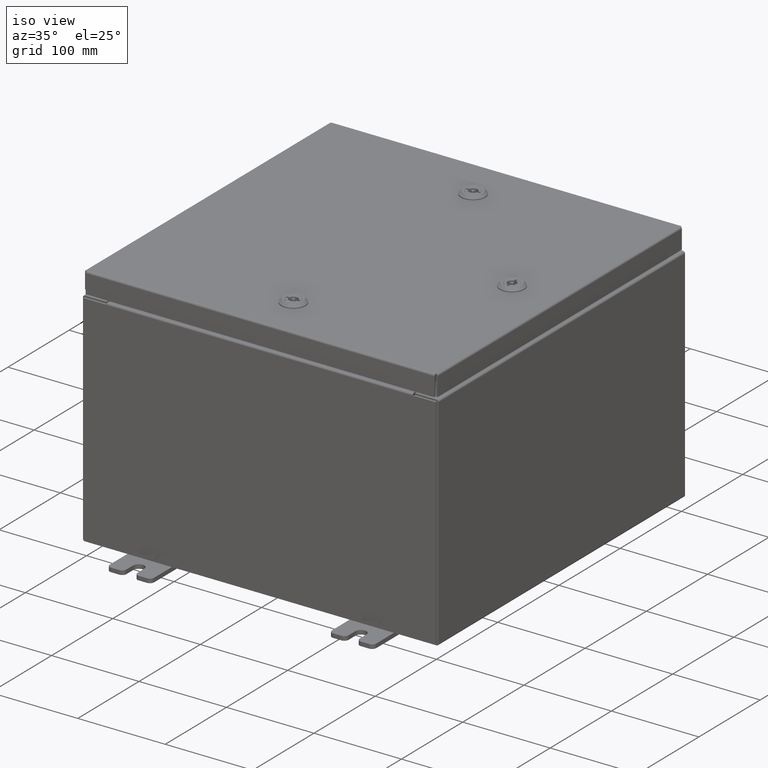
[diagram: clean part render]
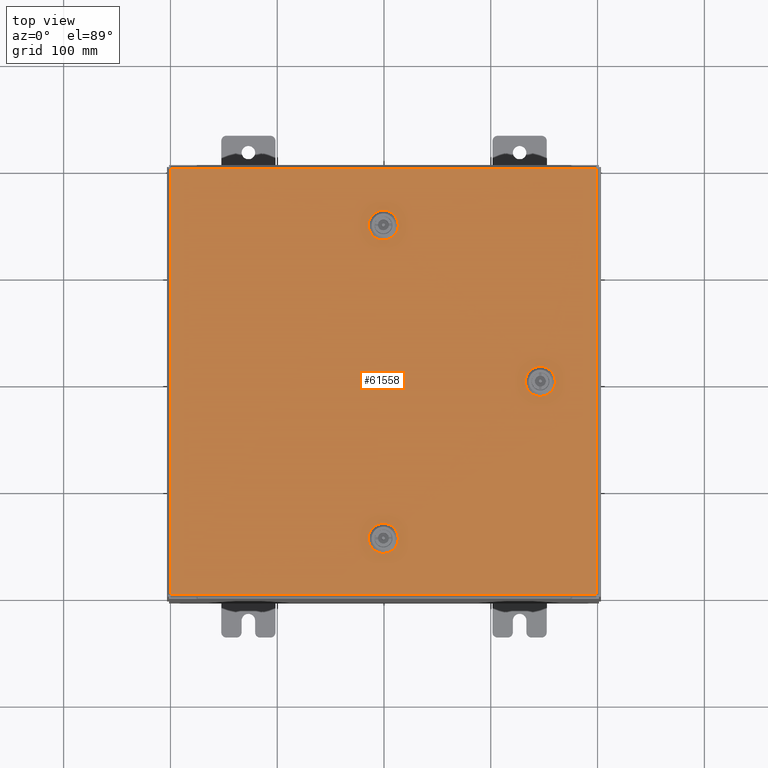
[diagram: tour spotlight — one face highlighted and labeled with its STEP entity id]
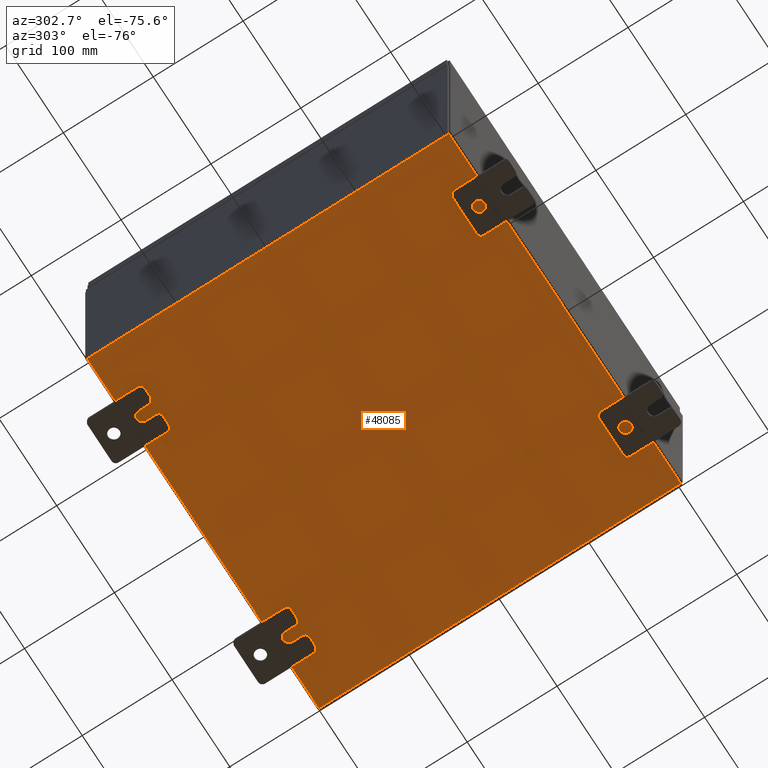
[diagram: tour spotlight — one face highlighted and labeled with its STEP entity id]
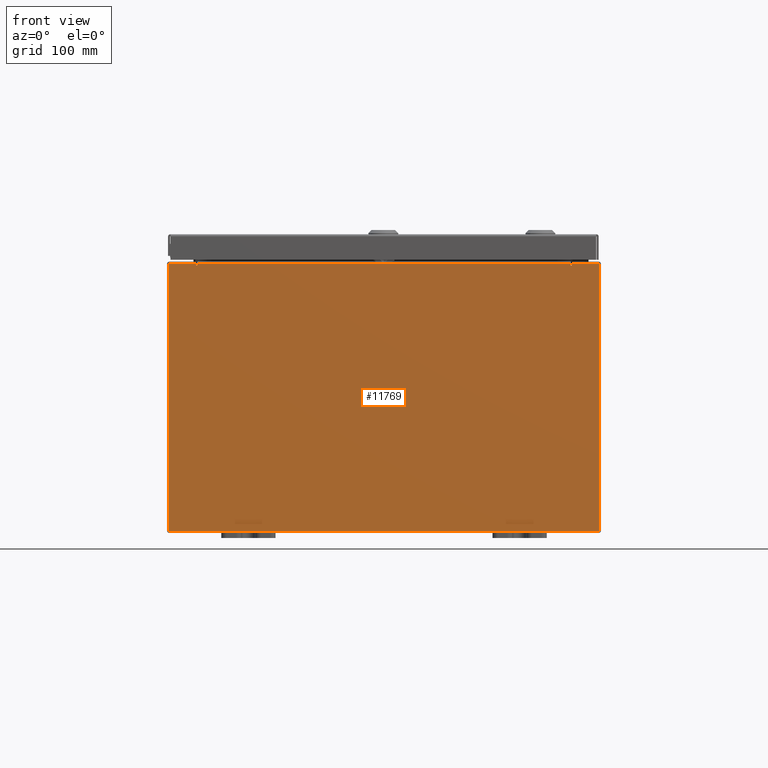
[diagram: tour spotlight — one face highlighted and labeled with its STEP entity id]
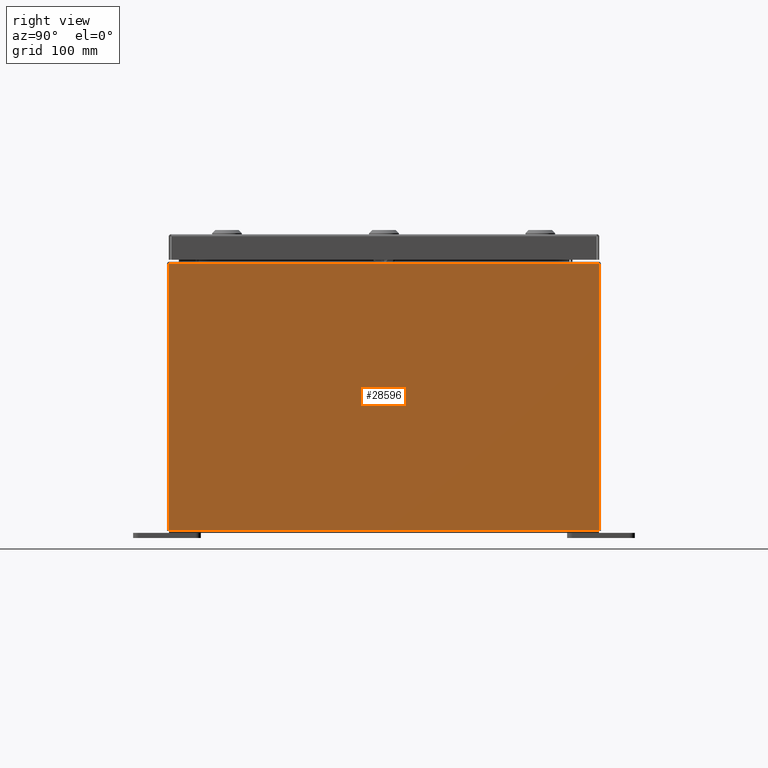
[diagram: tour spotlight — one face highlighted and labeled with its STEP entity id]
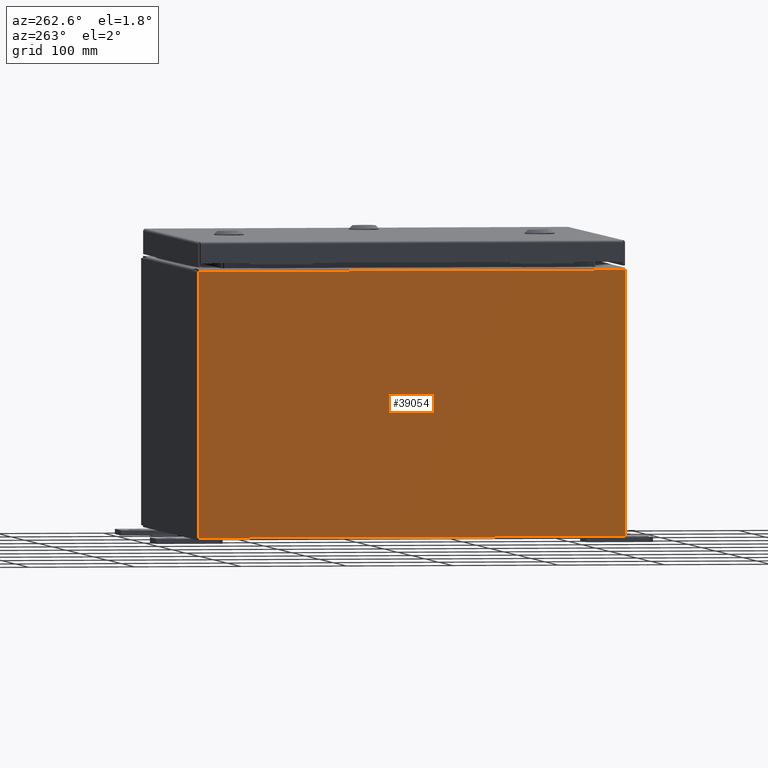
[diagram: tour spotlight — one face highlighted and labeled with its STEP entity id]
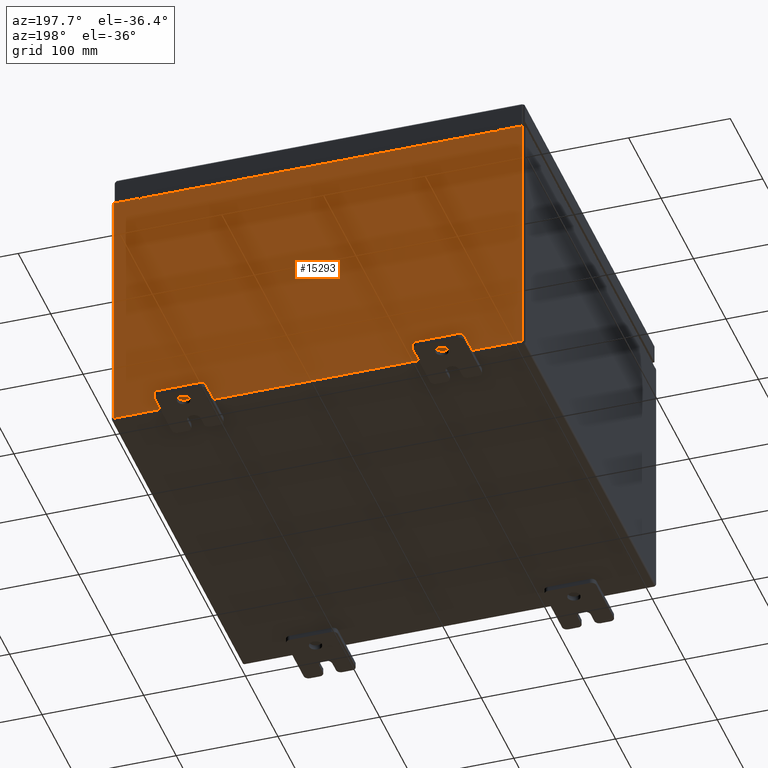
[diagram: tour spotlight — one face highlighted and labeled with its STEP entity id]
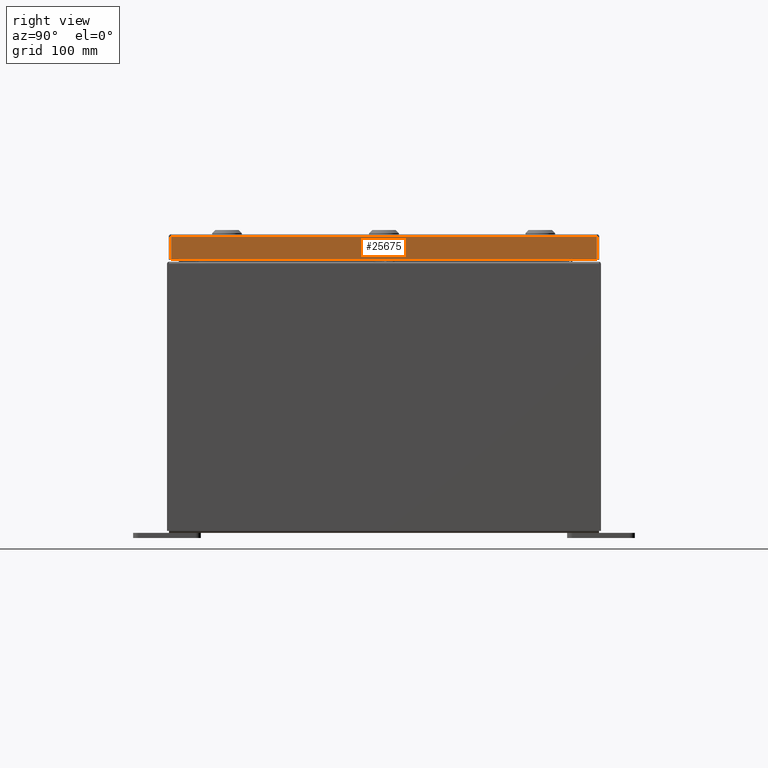
[diagram: tour spotlight — one face highlighted and labeled with its STEP entity id]
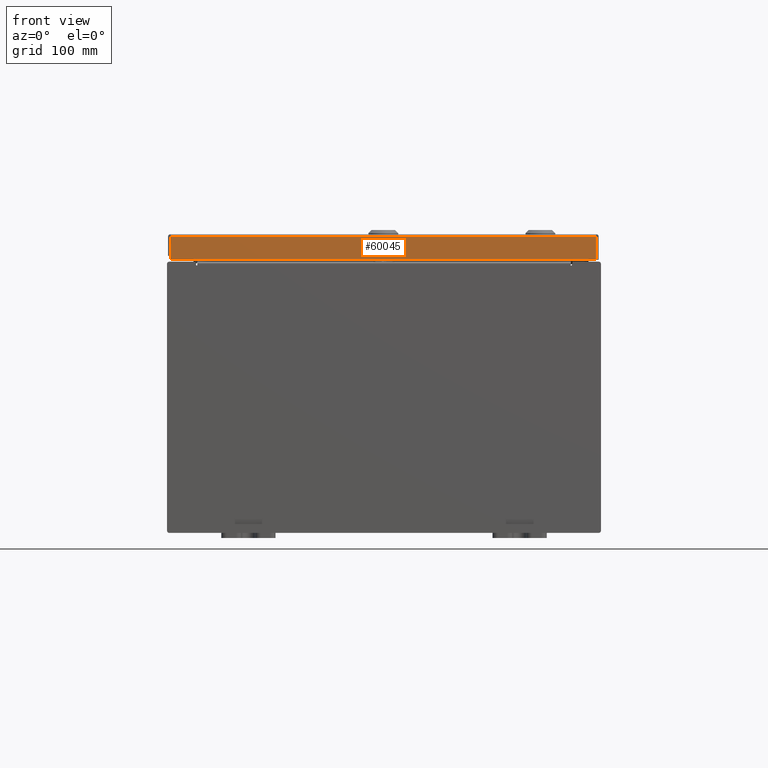
[diagram: tour spotlight — one face highlighted and labeled with its STEP entity id]
A machine part: a face-by-face anatomy tour. The part has 2966 B-rep faces; the first image is the clean iso view, then the 8 largest visible faces are spotlighted one at a time (largest first), each with its STEP entity span.

Face 1 — top view, entity #61558. In plain terms, the highlighted planar face has unit normal (0, 0, -1).
Definition (entity closure, byte-faithful):
#1628 = VECTOR ( 'NONE', #18817, 39.37007874015748100 ) ;
#2269 = ORIENTED_EDGE ( 'NONE', *, *, #38586, .T. ) ;
#2333 = DIRECTION ( 'NONE',  ( 1.000000000000000000, 0.0000000000000000000, 0.0000000000000000000 ) ) ;
#2975 = DIRECTION ( 'NONE',  ( 0.0000000000000000000, 1.000000000000000000, 6.982962677686269100E-015 ) ) ;
#3232 = CARTESIAN_POINT ( 'NONE',  ( 0.1994523752679067700, -6.182799999999984300, -5.238409111919896100E-014 ) ) ;
#4063 = CARTESIAN_POINT ( 'NONE',  ( -7.849800000000000100, 7.849800000000000100, -2.048885995248197400E-016 ) ) ;
#4675 = FACE_BOUND ( 'NONE', #20193, .T. ) ;
#4688 = AXIS2_PLACEMENT_3D ( 'NONE', #60210, #31303, #2333 ) ;
#5046 = VECTOR ( 'NONE', #30084, 39.37007874015748100 ) ;
#5088 = CARTESIAN_POINT ( 'NONE',  ( 0.1994523752678995500, 5.392799999999995800, 0.0000000000000000000 ) ) ;
#5229 = CARTESIAN_POINT ( 'NONE',  ( 5.787800000000007800, 1.529834876451990400E-014, 0.0000000000000000000 ) ) ;
#5230 = DIRECTION ( 'NONE',  ( -0.0000000000000000000, -6.982962677686266700E-015, 1.000000000000000000 ) ) ;
#5826 = AXIS2_PLACEMENT_3D ( 'NONE', #5229, #38974, #10082 ) ;
#5954 = EDGE_CURVE ( 'NONE', #57878, #8775, #12998, .T. ) ;
#6171 = ORIENTED_EDGE ( 'NONE', *, *, #48715, .F. ) ;
#6586 = CARTESIAN_POINT ( 'NONE',  ( 5.787800000000007800, 1.529834876451990400E-014, 0.0000000000000000000 ) ) ;
#6611 = ORIENTED_EDGE ( 'NONE', *, *, #12276, .F. ) ;
#7115 = CARTESIAN_POINT ( 'NONE',  ( 1.529834876451987200E-014, -5.787799999999992700, -4.962582086151294400E-014 ) ) ;
#7306 = LINE ( 'NONE', #20766, #44291 ) ;
#7378 = CARTESIAN_POINT ( 'NONE',  ( 0.4425000000000126100, -5.787799999999992700, -4.962582086151294400E-014 ) ) ;
#7491 = VERTEX_POINT ( 'NONE', #5088 ) ;
#7649 = DIRECTION ( 'NONE',  ( 0.0000000000000000000, 0.0000000000000000000, 1.000000000000000000 ) ) ;
#7707 = VECTOR ( 'NONE', #35070, 39.37007874015748100 ) ;
#8286 = EDGE_CURVE ( 'NONE', #13248, #14443, #32506, .T. ) ;
#8775 = VERTEX_POINT ( 'NONE', #45717 ) ;
#9689 = EDGE_LOOP ( 'NONE', ( #44489, #6171, #31150, #50867, #27893 ) ) ;
#10082 = DIRECTION ( 'NONE',  ( 1.000000000000000000, 0.0000000000000000000, 0.0000000000000000000 ) ) ;
#10155 = CIRCLE ( 'NONE', #39723, 0.4424999999999979500 ) ;
#10565 = VECTOR ( 'NONE', #16201, 39.37007874015748100 ) ;
#10745 = CARTESIAN_POINT ( 'NONE',  ( 5.392800000000015400, 0.1994523752679053800, 0.0000000000000000000 ) ) ;
#11423 = DIRECTION ( 'NONE',  ( 1.000000000000000000, 0.0000000000000000000, 0.0000000000000000000 ) ) ;
#11678 = EDGE_CURVE ( 'NONE', #7491, #13680, #58728, .T. ) ;
#11967 = DIRECTION ( 'NONE',  ( 0.0000000000000000000, 1.000000000000000000, 6.982962677686252500E-015 ) ) ;
#12276 = EDGE_CURVE ( 'NONE', #41647, #7491, #43552, .T. ) ;
#12998 = LINE ( 'NONE', #47601, #1628 ) ;
#13248 = VERTEX_POINT ( 'NONE', #7378 ) ;
#13680 = VERTEX_POINT ( 'NONE', #43745 ) ;
#14443 = VERTEX_POINT ( 'NONE', #46958 ) ;
#14525 = VECTOR ( 'NONE', #60883, 39.37007874015748100 ) ;
#15203 = AXIS2_PLACEMENT_3D ( 'NONE', #36545, #7649, #41386 ) ;
#15505 = VECTOR ( 'NONE', #29927, 39.37007874015748100 ) ;
#16201 = DIRECTION ( 'NONE',  ( -1.000000000000000000, -0.0000000000000000000, -0.0000000000000000000 ) ) ;
#17466 = DIRECTION ( 'NONE',  ( 0.0000000000000000000, 0.0000000000000000000, -1.000000000000000000 ) ) ;
#17490 = EDGE_CURVE ( 'NONE', #36808, #26967, #22110, .T. ) ;
#17580 = FACE_BOUND ( 'NONE', #29877, .T. ) ;
#17605 = AXIS2_PLACEMENT_3D ( 'NONE', #60825, #31925, #2975 ) ;
#18817 = DIRECTION ( 'NONE',  ( -1.000000000000000000, 1.369674334534795400E-014, 0.0000000000000000000 ) ) ;
#20193 = EDGE_LOOP ( 'NONE', ( #45810, #58551, #49686, #47862 ) ) ;
#20311 = EDGE_CURVE ( 'NONE', #44672, #28057, #23438, .T. ) ;
#20548 = CARTESIAN_POINT ( 'NONE',  ( 0.1994523752679068500, 6.182799999999984300, 0.0000000000000000000 ) ) ;
#20678 = CARTESIAN_POINT ( 'NONE',  ( 7.849800000000000100, 7.849800000000000100, -2.219626494852214000E-016 ) ) ;
#20680 = CARTESIAN_POINT ( 'NONE',  ( -0.1994523752678689600, 5.392799999999994900, 0.0000000000000000000 ) ) ;
#20766 = CARTESIAN_POINT ( 'NONE',  ( 7.849800000000000100, -7.849800000000000100, -2.219626494852214000E-016 ) ) ;
#22110 = LINE ( 'NONE', #49386, #7707 ) ;
#23297 = ORIENTED_EDGE ( 'NONE', *, *, #25800, .T. ) ;
#23438 = LINE ( 'NONE', #35362, #10565 ) ;
#23875 = EDGE_CURVE ( 'NONE', #14443, #28324, #31600, .T. ) ;
#24201 = DIRECTION ( 'NONE',  ( 0.0000000000000000000, 0.0000000000000000000, 1.000000000000000000 ) ) ;
#25096 = CARTESIAN_POINT ( 'NONE',  ( -7.849800000000000100, -7.849800000000000100, -2.219626494852214000E-016 ) ) ;
#25245 = CARTESIAN_POINT ( 'NONE',  ( 0.1994523752678995500, 5.392799999999995800, 0.0000000000000000000 ) ) ;
#25800 = EDGE_CURVE ( 'NONE', #49701, #44672, #7306, .T. ) ;
#26625 = CARTESIAN_POINT ( 'NONE',  ( -7.849800000000000100, -7.849800000000000100, -2.219626494852214000E-016 ) ) ;
#26942 = CARTESIAN_POINT ( 'NONE',  ( 0.0000000000000000000, 0.0000000000000000000, 0.0000000000000000000 ) ) ;
#26967 = VERTEX_POINT ( 'NONE', #47202 ) ;
#27371 = LINE ( 'NONE', #3232, #14525 ) ;
#27893 = ORIENTED_EDGE ( 'NONE', *, *, #44519, .F. ) ;
#28050 = CARTESIAN_POINT ( 'NONE',  ( 0.1994523752679070700, -6.182799999999984300, -5.238409111919896100E-014 ) ) ;
#28057 = VERTEX_POINT ( 'NONE', #58533 ) ;
#28110 = CARTESIAN_POINT ( 'NONE',  ( 5.392800000000015400, 0.1994523752679058200, 0.0000000000000000000 ) ) ;
#28150 = ORIENTED_EDGE ( 'NONE', *, *, #47436, .F. ) ;
#28324 = VERTEX_POINT ( 'NONE', #50462 ) ;
#28349 = CIRCLE ( 'NONE', #33458, 0.4424999999999983400 ) ;
#28680 = ORIENTED_EDGE ( 'NONE', *, *, #5954, .F. ) ;
#28745 = CARTESIAN_POINT ( 'NONE',  ( 0.1994523752678995500, -5.392799999999995800, -4.686755060382689600E-014 ) ) ;
#28906 = VERTEX_POINT ( 'NONE', #26625 ) ;
#29147 = CARTESIAN_POINT ( 'NONE',  ( 7.849800000000000100, -7.849800000000000100, -2.219626494852214000E-016 ) ) ;
#29877 = EDGE_LOOP ( 'NONE', ( #6611, #59779, #28680, #28150, #59407 ) ) ;
#29927 = DIRECTION ( 'NONE',  ( 1.000000000000000000, -0.0000000000000000000, -0.0000000000000000000 ) ) ;
#29969 = DIRECTION ( 'NONE',  ( -1.095739467627836100E-014, -1.000000000000000000, 0.0000000000000000000 ) ) ;
#30084 = DIRECTION ( 'NONE',  ( 1.000000000000000000, 2.739348669069617500E-015, -0.0000000000000000000 ) ) ;
#30099 = DIRECTION ( 'NONE',  ( 0.0000000000000000000, 1.000000000000000000, 0.0000000000000000000 ) ) ;
#31150 = ORIENTED_EDGE ( 'NONE', *, *, #23875, .F. ) ;
#31303 = DIRECTION ( 'NONE',  ( 0.0000000000000000000, 0.0000000000000000000, 1.000000000000000000 ) ) ;
#31358 = LINE ( 'NONE', #25096, #15505 ) ;
#31600 = LINE ( 'NONE', #28745, #57235 ) ;
#31773 = EDGE_CURVE ( 'NONE', #49623, #40280, #61168, .T. ) ;
#31925 = DIRECTION ( 'NONE',  ( -0.0000000000000000000, -6.982962677686266700E-015, 1.000000000000000000 ) ) ;
#32506 = CIRCLE ( 'NONE', #46568, 0.4424999999999972800 ) ;
#33008 = CARTESIAN_POINT ( 'NONE',  ( 5.392800000000011800, -0.1994523752678671000, 0.0000000000000000000 ) ) ;
#33458 = AXIS2_PLACEMENT_3D ( 'NONE', #7115, #40841, #11967 ) ;
#34143 = CARTESIAN_POINT ( 'NONE',  ( 1.529834876451987200E-014, -5.787799999999992700, -4.962582086151294400E-014 ) ) ;
#34283 = ORIENTED_EDGE ( 'NONE', *, *, #20311, .T. ) ;
#34635 = CIRCLE ( 'NONE', #17605, 0.4424999999999972800 ) ;
#34971 = DIRECTION ( 'NONE',  ( 0.0000000000000000000, 1.000000000000000000, 6.982962677686269100E-015 ) ) ;
#35070 = DIRECTION ( 'NONE',  ( -8.218046007208852600E-015, 1.000000000000000000, -0.0000000000000000000 ) ) ;
#35362 = CARTESIAN_POINT ( 'NONE',  ( 7.849800000000000100, 7.849800000000000100, -2.219626494852214000E-016 ) ) ;
#35689 = CIRCLE ( 'NONE', #36227, 0.4424999999999983400 ) ;
#36227 = AXIS2_PLACEMENT_3D ( 'NONE', #6586, #40305, #11423 ) ;
#36545 = CARTESIAN_POINT ( 'NONE',  ( 1.529834876451987200E-014, 5.787799999999992700, 0.0000000000000000000 ) ) ;
#36612 = PLANE ( 'NONE',  #46741 ) ;
#36808 = VERTEX_POINT ( 'NONE', #58462 ) ;
#37838 = DIRECTION ( 'NONE',  ( 0.0000000000000000000, -1.000000000000000000, 0.0000000000000000000 ) ) ;
#38586 = EDGE_CURVE ( 'NONE', #28906, #49701, #31358, .T. ) ;
#38968 = CIRCLE ( 'NONE', #4688, 0.4424999999999973400 ) ;
#38974 = DIRECTION ( 'NONE',  ( 0.0000000000000000000, 0.0000000000000000000, 1.000000000000000000 ) ) ;
#39723 = AXIS2_PLACEMENT_3D ( 'NONE', #53032, #24201, #57904 ) ;
#40280 = VERTEX_POINT ( 'NONE', #33008 ) ;
#40305 = DIRECTION ( 'NONE',  ( 0.0000000000000000000, 0.0000000000000000000, 1.000000000000000000 ) ) ;
#40841 = DIRECTION ( 'NONE',  ( -0.0000000000000000000, -6.982962677686266700E-015, 1.000000000000000000 ) ) ;
#41386 = DIRECTION ( 'NONE',  ( 1.000000000000000000, 0.0000000000000000000, 0.0000000000000000000 ) ) ;
#41647 = VERTEX_POINT ( 'NONE', #20680 ) ;
#41665 = FACE_OUTER_BOUND ( 'NONE', #48975, .T. ) ;
#42643 = EDGE_CURVE ( 'NONE', #8775, #41647, #10155, .T. ) ;
#43552 = LINE ( 'NONE', #25245, #5046 ) ;
#43698 = ORIENTED_EDGE ( 'NONE', *, *, #50953, .T. ) ;
#43745 = CARTESIAN_POINT ( 'NONE',  ( 0.4425000000000126100, 5.787799999999992700, 0.0000000000000000000 ) ) ;
#43863 = VERTEX_POINT ( 'NONE', #28050 ) ;
#44136 = EDGE_CURVE ( 'NONE', #26967, #49623, #56531, .T. ) ;
#44291 = VECTOR ( 'NONE', #30099, 39.37007874015748100 ) ;
#44489 = ORIENTED_EDGE ( 'NONE', *, *, #61602, .F. ) ;
#44519 = EDGE_CURVE ( 'NONE', #43863, #13248, #34635, .T. ) ;
#44672 = VERTEX_POINT ( 'NONE', #20678 ) ;
#45717 = CARTESIAN_POINT ( 'NONE',  ( -0.1994523752678657400, 6.182799999999989600, 0.0000000000000000000 ) ) ;
#45810 = ORIENTED_EDGE ( 'NONE', *, *, #17490, .F. ) ;
#46568 = AXIS2_PLACEMENT_3D ( 'NONE', #34143, #5230, #34971 ) ;
#46741 = AXIS2_PLACEMENT_3D ( 'NONE', #26942, #17466, #51155 ) ;
#46798 = VECTOR ( 'NONE', #29969, 39.37007874015748100 ) ;
#46958 = CARTESIAN_POINT ( 'NONE',  ( 0.1994523752678995500, -5.392799999999995800, -4.686755060382689600E-014 ) ) ;
#47202 = CARTESIAN_POINT ( 'NONE',  ( 6.182800000000003000, 0.1994523752679009100, 0.0000000000000000000 ) ) ;
#47436 = EDGE_CURVE ( 'NONE', #13680, #57878, #38968, .T. ) ;
#47601 = CARTESIAN_POINT ( 'NONE',  ( 0.1994523752679067700, 6.182799999999984300, 0.0000000000000000000 ) ) ;
#47862 = ORIENTED_EDGE ( 'NONE', *, *, #44136, .F. ) ;
#48715 = EDGE_CURVE ( 'NONE', #28324, #55845, #28349, .T. ) ;
#48975 = EDGE_LOOP ( 'NONE', ( #2269, #23297, #34283, #43698 ) ) ;
#49315 = VECTOR ( 'NONE', #37838, 39.37007874015748100 ) ;
#49386 = CARTESIAN_POINT ( 'NONE',  ( 6.182800000000003000, 0.1994523752679009100, 0.0000000000000000000 ) ) ;
#49623 = VERTEX_POINT ( 'NONE', #28110 ) ;
#49686 = ORIENTED_EDGE ( 'NONE', *, *, #31773, .F. ) ;
#49701 = VERTEX_POINT ( 'NONE', #29147 ) ;
#50462 = CARTESIAN_POINT ( 'NONE',  ( -0.1994523752678689600, -5.392799999999994900, -4.686755060382689000E-014 ) ) ;
#50830 = LINE ( 'NONE', #4063, #49315 ) ;
#50867 = ORIENTED_EDGE ( 'NONE', *, *, #8286, .F. ) ;
#50953 = EDGE_CURVE ( 'NONE', #28057, #28906, #50830, .T. ) ;
#51155 = DIRECTION ( 'NONE',  ( -1.000000000000000000, 0.0000000000000000000, -0.0000000000000000000 ) ) ;
#51593 = CARTESIAN_POINT ( 'NONE',  ( -0.1994523752678657400, -6.182799999999990500, 0.0000000000000000000 ) ) ;
#53032 = CARTESIAN_POINT ( 'NONE',  ( 1.529834876451987200E-014, 5.787799999999992700, 0.0000000000000000000 ) ) ;
#54508 = FACE_BOUND ( 'NONE', #9689, .T. ) ;
#55845 = VERTEX_POINT ( 'NONE', #51593 ) ;
#56531 = CIRCLE ( 'NONE', #5826, 0.4424999999999972800 ) ;
#57235 = VECTOR ( 'NONE', #62474, 39.37007874015748100 ) ;
#57878 = VERTEX_POINT ( 'NONE', #20548 ) ;
#57904 = DIRECTION ( 'NONE',  ( 1.000000000000000000, 0.0000000000000000000, 0.0000000000000000000 ) ) ;
#58462 = CARTESIAN_POINT ( 'NONE',  ( 6.182800000000007400, -0.1994523752678676000, 0.0000000000000000000 ) ) ;
#58533 = CARTESIAN_POINT ( 'NONE',  ( -7.849800000000000100, 7.849800000000000100, -2.048885995248197400E-016 ) ) ;
#58551 = ORIENTED_EDGE ( 'NONE', *, *, #60784, .F. ) ;
#58728 = CIRCLE ( 'NONE', #15203, 0.4424999999999973400 ) ;
#59407 = ORIENTED_EDGE ( 'NONE', *, *, #11678, .F. ) ;
#59779 = ORIENTED_EDGE ( 'NONE', *, *, #42643, .F. ) ;
#60210 = CARTESIAN_POINT ( 'NONE',  ( 1.529834876451987200E-014, 5.787799999999992700, 0.0000000000000000000 ) ) ;
#60784 = EDGE_CURVE ( 'NONE', #40280, #36808, #35689, .T. ) ;
#60825 = CARTESIAN_POINT ( 'NONE',  ( 1.529834876451987200E-014, -5.787799999999992700, -4.962582086151294400E-014 ) ) ;
#60883 = DIRECTION ( 'NONE',  ( 1.000000000000000000, 1.369674334534795400E-014, 9.732121487607481600E-029 ) ) ;
#61168 = LINE ( 'NONE', #10745, #46798 ) ;
#61558 = ADVANCED_FACE ( 'NONE', ( #4675, #54508, #17580, #41665 ), #36612, .F. ) ;
#61602 = EDGE_CURVE ( 'NONE', #55845, #43863, #27371, .T. ) ;
#62474 = DIRECTION ( 'NONE',  ( -1.000000000000000000, 2.739348669069617500E-015, 1.946424297521515400E-029 ) ) ;

Face 2 — auxiliary view, entity #48085. In plain terms, the highlighted planar face has unit normal (0, 0, -1).
Definition (entity closure, byte-faithful):
#230 = VERTEX_POINT ( 'NONE', #6481 ) ;
#310 = VERTEX_POINT ( 'NONE', #9939 ) ;
#583 = EDGE_LOOP ( 'NONE', ( #620, #53478, #60267, #39450 ) ) ;
#620 = ORIENTED_EDGE ( 'NONE', *, *, #56336, .F. ) ;
#2266 = DIRECTION ( 'NONE',  ( -1.000000000000000000, 0.0000000000000000000, -0.0000000000000000000 ) ) ;
#6481 = CARTESIAN_POINT ( 'NONE',  ( 7.912299999999998300, 7.925300000000000000, -0.07469999999999994700 ) ) ;
#8326 = VECTOR ( 'NONE', #11162, 39.37007874015748100 ) ;
#9258 = EDGE_CURVE ( 'NONE', #230, #47559, #19667, .T. ) ;
#9939 = CARTESIAN_POINT ( 'NONE',  ( -7.912300000000001000, 7.925299999999998200, -0.07470000000000000300 ) ) ;
#11162 = DIRECTION ( 'NONE',  ( -1.000000000000000000, -0.0000000000000000000, -0.0000000000000000000 ) ) ;
#11187 = VECTOR ( 'NONE', #59729, 39.37007874015748100 ) ;
#19387 = CARTESIAN_POINT ( 'NONE',  ( 7.912299999999998300, 7.925300000000000000, -0.07469999999999994700 ) ) ;
#19667 = LINE ( 'NONE', #19387, #56569 ) ;
#22383 = FACE_OUTER_BOUND ( 'NONE', #583, .T. ) ;
#23083 = CARTESIAN_POINT ( 'NONE',  ( 7.912299999999998300, -7.925300000000000900, -0.07470000000000000300 ) ) ;
#24139 = EDGE_CURVE ( 'NONE', #42591, #310, #38346, .T. ) ;
#26183 = CARTESIAN_POINT ( 'NONE',  ( 0.0000000000000000000, 0.0000000000000000000, -0.07470000000000000300 ) ) ;
#26398 = PLANE ( 'NONE',  #52001 ) ;
#30387 = CARTESIAN_POINT ( 'NONE',  ( -8.000000000000001800, 7.925299999999998200, -0.07470000000000000300 ) ) ;
#31230 = DIRECTION ( 'NONE',  ( 0.0000000000000000000, 0.0000000000000000000, -1.000000000000000000 ) ) ;
#31761 = LINE ( 'NONE', #40793, #43037 ) ;
#31843 = EDGE_CURVE ( 'NONE', #230, #310, #45298, .T. ) ;
#33883 = DIRECTION ( 'NONE',  ( -0.0000000000000000000, -1.000000000000000000, -0.0000000000000000000 ) ) ;
#38346 = LINE ( 'NONE', #54837, #11187 ) ;
#39450 = ORIENTED_EDGE ( 'NONE', *, *, #9258, .T. ) ;
#40793 = CARTESIAN_POINT ( 'NONE',  ( -8.000000000000001800, -7.925300000000000900, -0.07470000000000000300 ) ) ;
#42591 = VERTEX_POINT ( 'NONE', #47969 ) ;
#43037 = VECTOR ( 'NONE', #60033, 39.37007874015748100 ) ;
#45298 = LINE ( 'NONE', #30387, #8326 ) ;
#47559 = VERTEX_POINT ( 'NONE', #23083 ) ;
#47969 = CARTESIAN_POINT ( 'NONE',  ( -7.912300000000001000, -7.925300000000000900, -0.07469999999999994700 ) ) ;
#48085 = ADVANCED_FACE ( 'NONE', ( #22383 ), #26398, .T. ) ;
#52001 = AXIS2_PLACEMENT_3D ( 'NONE', #26183, #31230, #2266 ) ;
#53478 = ORIENTED_EDGE ( 'NONE', *, *, #24139, .T. ) ;
#54837 = CARTESIAN_POINT ( 'NONE',  ( -7.912300000000001000, -7.925300000000000900, -0.07469999999999994700 ) ) ;
#56336 = EDGE_CURVE ( 'NONE', #42591, #47559, #31761, .T. ) ;
#56569 = VECTOR ( 'NONE', #33883, 39.37007874015748100 ) ;
#59729 = DIRECTION ( 'NONE',  ( -0.0000000000000000000, 1.000000000000000000, -0.0000000000000000000 ) ) ;
#60033 = DIRECTION ( 'NONE',  ( 1.000000000000000000, 0.0000000000000000000, 0.0000000000000000000 ) ) ;
#60267 = ORIENTED_EDGE ( 'NONE', *, *, #31843, .F. ) ;

Face 3 — front view, entity #11769. In plain terms, the highlighted planar face has unit normal (-0, 1, -0).
Definition (entity closure, byte-faithful):
#56 = VECTOR ( 'NONE', #48760, 39.37007874015748100 ) ;
#68 = DIRECTION ( 'NONE',  ( -0.0000000000000000000, 1.000000000000000000, -0.0000000000000000000 ) ) ;
#440 = CIRCLE ( 'NONE', #58911, 0.01867500000000003900 ) ;
#1179 = CARTESIAN_POINT ( 'NONE',  ( -6.924550000000001800, -0.0000000000000000000, 0.0000000000000000000 ) ) ;
#1562 = LINE ( 'NONE', #20184, #56 ) ;
#3173 = DIRECTION ( 'NONE',  ( 0.0000000000000000000, -0.0000000000000000000, -1.000000000000000000 ) ) ;
#4588 = ORIENTED_EDGE ( 'NONE', *, *, #61961, .T. ) ;
#6070 = DIRECTION ( 'NONE',  ( 0.0000000000000000000, 0.0000000000000000000, 1.000000000000000000 ) ) ;
#6918 = VERTEX_POINT ( 'NONE', #50690 ) ;
#8113 = VERTEX_POINT ( 'NONE', #37107 ) ;
#9494 = EDGE_CURVE ( 'NONE', #8113, #36257, #27907, .T. ) ;
#9606 = CARTESIAN_POINT ( 'NONE',  ( 7.925299999999996500, 0.0000000000000000000, 4.925300000000000900 ) ) ;
#11002 = DIRECTION ( 'NONE',  ( 1.000000000000000000, 0.0000000000000000000, 0.0000000000000000000 ) ) ;
#11362 = CARTESIAN_POINT ( 'NONE',  ( 6.924549999999784200, -0.0000000000000000000, -3.005651324651791800E-013 ) ) ;
#11371 = DIRECTION ( 'NONE',  ( -0.0000000000000000000, 1.000000000000000000, -0.0000000000000000000 ) ) ;
#11769 = ADVANCED_FACE ( 'NONE', ( #18765 ), #41588, .F. ) ;
#11888 = CARTESIAN_POINT ( 'NONE',  ( 6.887199999999996400, 0.0000000000000000000, 4.912300000000001000 ) ) ;
#12170 = EDGE_CURVE ( 'NONE', #30643, #27568, #46566, .T. ) ;
#12548 = VERTEX_POINT ( 'NONE', #50277 ) ;
#12605 = LINE ( 'NONE', #61495, #62395 ) ;
#13576 = EDGE_CURVE ( 'NONE', #25588, #12548, #440, .T. ) ;
#15683 = CARTESIAN_POINT ( 'NONE',  ( -6.887200000000002700, -1.707404996040164500E-016, 4.912300000000001000 ) ) ;
#15719 = VERTEX_POINT ( 'NONE', #25342 ) ;
#17204 = CARTESIAN_POINT ( 'NONE',  ( 0.0000000000000000000, 0.0000000000000000000, 0.0000000000000000000 ) ) ;
#17648 = LINE ( 'NONE', #11362, #41719 ) ;
#18324 = DIRECTION ( 'NONE',  ( 1.000000000000000000, 0.0000000000000000000, 0.0000000000000000000 ) ) ;
#18765 = FACE_OUTER_BOUND ( 'NONE', #37292, .T. ) ;
#18825 = DIRECTION ( 'NONE',  ( 1.000000000000000000, 0.0000000000000000000, 0.0000000000000000000 ) ) ;
#19191 = CARTESIAN_POINT ( 'NONE',  ( -6.887200000000001800, -0.0000000000000000000, 4.874950000000001000 ) ) ;
#19998 = ORIENTED_EDGE ( 'NONE', *, *, #33041, .F. ) ;
#20184 = CARTESIAN_POINT ( 'NONE',  ( -7.925300000000002700, 0.0000000000000000000, 4.925300000000000900 ) ) ;
#21573 = LINE ( 'NONE', #42979, #60049 ) ;
#22484 = VECTOR ( 'NONE', #43346, 39.37007874015748100 ) ;
#22977 = ORIENTED_EDGE ( 'NONE', *, *, #40818, .F. ) ;
#23135 = VERTEX_POINT ( 'NONE', #45390 ) ;
#23391 = VECTOR ( 'NONE', #24156, 39.37007874015748100 ) ;
#24016 = LINE ( 'NONE', #1179, #48094 ) ;
#24091 = ORIENTED_EDGE ( 'NONE', *, *, #30601, .T. ) ;
#24156 = DIRECTION ( 'NONE',  ( 0.0000000000000000000, 0.0000000000000000000, -1.000000000000000000 ) ) ;
#24366 = ORIENTED_EDGE ( 'NONE', *, *, #38372, .T. ) ;
#24599 = DIRECTION ( 'NONE',  ( -1.000000000000000000, -0.0000000000000000000, -0.0000000000000000000 ) ) ;
#25342 = CARTESIAN_POINT ( 'NONE',  ( -6.924550000000001800, 0.0000000000000000000, 4.925300000000000900 ) ) ;
#25588 = VERTEX_POINT ( 'NONE', #19191 ) ;
#26413 = VECTOR ( 'NONE', #59197, 39.37007874015748100 ) ;
#26536 = ORIENTED_EDGE ( 'NONE', *, *, #9494, .F. ) ;
#27341 = ORIENTED_EDGE ( 'NONE', *, *, #52798, .F. ) ;
#27568 = VERTEX_POINT ( 'NONE', #37614 ) ;
#27907 = LINE ( 'NONE', #53876, #26413 ) ;
#29012 = CARTESIAN_POINT ( 'NONE',  ( -6.905875000000001800, 0.0000000000000000000, 4.874950000000001000 ) ) ;
#29218 = CARTESIAN_POINT ( 'NONE',  ( -7.925300000000002700, 0.0000000000000000000, -4.925299999999998200 ) ) ;
#30601 = EDGE_CURVE ( 'NONE', #57247, #52946, #1562, .T. ) ;
#30643 = VERTEX_POINT ( 'NONE', #44358 ) ;
#32133 = DIRECTION ( 'NONE',  ( 0.0000000000000000000, -1.000000000000000000, 0.0000000000000000000 ) ) ;
#33041 = EDGE_CURVE ( 'NONE', #23135, #25588, #47454, .T. ) ;
#33064 = ORIENTED_EDGE ( 'NONE', *, *, #13576, .F. ) ;
#33863 = DIRECTION ( 'NONE',  ( 0.0000000000000000000, 0.0000000000000000000, -1.000000000000000000 ) ) ;
#35609 = DIRECTION ( 'NONE',  ( -4.340572780400004900E-014, 0.0000000000000000000, -1.000000000000000000 ) ) ;
#36257 = VERTEX_POINT ( 'NONE', #11888 ) ;
#37107 = CARTESIAN_POINT ( 'NONE',  ( 6.887199999999996400, 0.0000000000000000000, 4.874950000000001000 ) ) ;
#37235 = CIRCLE ( 'NONE', #57860, 0.01867500000000003900 ) ;
#37292 = EDGE_LOOP ( 'NONE', ( #59716, #33064, #19998, #40668, #26536, #27341, #22977, #38394, #52571, #4588, #24091, #24366 ) ) ;
#37614 = CARTESIAN_POINT ( 'NONE',  ( 7.925299999999996500, 0.0000000000000000000, -4.925299999999998200 ) ) ;
#37798 = AXIS2_PLACEMENT_3D ( 'NONE', #17204, #32133, #3173 ) ;
#38134 = CARTESIAN_POINT ( 'NONE',  ( 6.924549999999996400, 0.0000000000000000000, 4.925300000000000900 ) ) ;
#38372 = EDGE_CURVE ( 'NONE', #52946, #15719, #21573, .T. ) ;
#38394 = ORIENTED_EDGE ( 'NONE', *, *, #46826, .T. ) ;
#40254 = CARTESIAN_POINT ( 'NONE',  ( 6.905874999999995500, 0.0000000000000000000, 4.874950000000001000 ) ) ;
#40668 = ORIENTED_EDGE ( 'NONE', *, *, #45217, .T. ) ;
#40818 = EDGE_CURVE ( 'NONE', #61156, #6918, #17648, .T. ) ;
#41588 = PLANE ( 'NONE',  #37798 ) ;
#41719 = VECTOR ( 'NONE', #35609, 39.37007874015748100 ) ;
#42979 = CARTESIAN_POINT ( 'NONE',  ( -7.925300000000002700, 0.0000000000000000000, 4.925300000000000900 ) ) ;
#43346 = DIRECTION ( 'NONE',  ( 0.0000000000000000000, 0.0000000000000000000, -1.000000000000000000 ) ) ;
#43732 = CARTESIAN_POINT ( 'NONE',  ( -7.925300000000002700, 0.0000000000000000000, 4.925300000000000900 ) ) ;
#44358 = CARTESIAN_POINT ( 'NONE',  ( 7.925299999999996500, 0.0000000000000000000, 4.925300000000000900 ) ) ;
#45120 = DIRECTION ( 'NONE',  ( 0.0000000000000000000, 0.0000000000000000000, -1.000000000000000000 ) ) ;
#45217 = EDGE_CURVE ( 'NONE', #23135, #36257, #51912, .T. ) ;
#45390 = CARTESIAN_POINT ( 'NONE',  ( -6.887200000000001800, -1.707404996040164500E-016, 4.912300000000001000 ) ) ;
#45805 = EDGE_CURVE ( 'NONE', #12548, #15719, #24016, .T. ) ;
#46566 = LINE ( 'NONE', #9606, #22484 ) ;
#46826 = EDGE_CURVE ( 'NONE', #61156, #30643, #12605, .T. ) ;
#47454 = LINE ( 'NONE', #52978, #23391 ) ;
#48094 = VECTOR ( 'NONE', #6070, 39.37007874015748100 ) ;
#48429 = LINE ( 'NONE', #29218, #56750 ) ;
#48760 = DIRECTION ( 'NONE',  ( -0.0000000000000000000, -0.0000000000000000000, 1.000000000000000000 ) ) ;
#50277 = CARTESIAN_POINT ( 'NONE',  ( -6.924550000000001800, 0.0000000000000000000, 4.874950000000001000 ) ) ;
#50410 = VECTOR ( 'NONE', #11002, 39.37007874015748100 ) ;
#50690 = CARTESIAN_POINT ( 'NONE',  ( 6.924549999999995500, 0.0000000000000000000, 4.874950000000001000 ) ) ;
#51912 = LINE ( 'NONE', #15683, #50410 ) ;
#52571 = ORIENTED_EDGE ( 'NONE', *, *, #12170, .T. ) ;
#52798 = EDGE_CURVE ( 'NONE', #6918, #8113, #37235, .T. ) ;
#52946 = VERTEX_POINT ( 'NONE', #43732 ) ;
#52978 = CARTESIAN_POINT ( 'NONE',  ( -6.887200000000001800, -0.0000000000000000000, 0.0000000000000000000 ) ) ;
#53876 = CARTESIAN_POINT ( 'NONE',  ( 6.887199999999996400, 0.0000000000000000000, 0.0000000000000000000 ) ) ;
#55469 = CARTESIAN_POINT ( 'NONE',  ( -7.925300000000002700, 0.0000000000000000000, -4.925299999999998200 ) ) ;
#56750 = VECTOR ( 'NONE', #24599, 39.37007874015748100 ) ;
#57247 = VERTEX_POINT ( 'NONE', #55469 ) ;
#57860 = AXIS2_PLACEMENT_3D ( 'NONE', #40254, #11371, #45120 ) ;
#58911 = AXIS2_PLACEMENT_3D ( 'NONE', #29012, #68, #33863 ) ;
#59197 = DIRECTION ( 'NONE',  ( 0.0000000000000000000, 0.0000000000000000000, 1.000000000000000000 ) ) ;
#59716 = ORIENTED_EDGE ( 'NONE', *, *, #45805, .F. ) ;
#60049 = VECTOR ( 'NONE', #18825, 39.37007874015748100 ) ;
#61156 = VERTEX_POINT ( 'NONE', #38134 ) ;
#61495 = CARTESIAN_POINT ( 'NONE',  ( -7.925300000000002700, 0.0000000000000000000, 4.925300000000000900 ) ) ;
#61961 = EDGE_CURVE ( 'NONE', #27568, #57247, #48429, .T. ) ;
#62395 = VECTOR ( 'NONE', #18324, 39.37007874015748100 ) ;

Face 4 — right view, entity #28596. In plain terms, the highlighted planar face has unit normal (-1, 0, 0).
Definition (entity closure, byte-faithful):
#640 = PLANE ( 'NONE',  #24998 ) ;
#1641 = ORIENTED_EDGE ( 'NONE', *, *, #5572, .T. ) ;
#1650 = DIRECTION ( 'NONE',  ( -3.523082860860888200E-015, -1.100963394019027400E-016, -1.000000000000000000 ) ) ;
#2913 = LINE ( 'NONE', #34670, #54266 ) ;
#4522 = CARTESIAN_POINT ( 'NONE',  ( 7.999999999999999100, 7.925299999999998200, -2.844547654289868400E-014 ) ) ;
#5510 = DIRECTION ( 'NONE',  ( 3.523082860860887800E-015, 0.0000000000000000000, 1.000000000000000000 ) ) ;
#5572 = EDGE_CURVE ( 'NONE', #31066, #58075, #37915, .T. ) ;
#5757 = DIRECTION ( 'NONE',  ( -0.0000000000000000000, -1.000000000000000000, -0.0000000000000000000 ) ) ;
#5837 = ORIENTED_EDGE ( 'NONE', *, *, #22929, .F. ) ;
#7722 = CARTESIAN_POINT ( 'NONE',  ( 8.000000000000035500, 7.925300000000000000, 9.837599999999993000 ) ) ;
#8651 = CARTESIAN_POINT ( 'NONE',  ( 8.000000000000033800, -7.925300000000000000, 9.837600000000000100 ) ) ;
#9388 = DIRECTION ( 'NONE',  ( 3.523082860860888200E-015, 0.0000000000000000000, 1.000000000000000000 ) ) ;
#10161 = CARTESIAN_POINT ( 'NONE',  ( 7.999999999999999100, 0.0000000000000000000, -2.844547654289868400E-014 ) ) ;
#13890 = CARTESIAN_POINT ( 'NONE',  ( 7.999999999999999100, 7.925300000000000000, 0.01299999999999984700 ) ) ;
#17785 = FACE_OUTER_BOUND ( 'NONE', #38710, .T. ) ;
#19302 = LINE ( 'NONE', #7722, #54674 ) ;
#20359 = ORIENTED_EDGE ( 'NONE', *, *, #38956, .T. ) ;
#22161 = VERTEX_POINT ( 'NONE', #33846 ) ;
#22929 = EDGE_CURVE ( 'NONE', #62497, #58075, #2913, .T. ) ;
#24427 = VECTOR ( 'NONE', #9388, 39.37007874015748100 ) ;
#24998 = AXIS2_PLACEMENT_3D ( 'NONE', #10161, #34436, #5510 ) ;
#27435 = LINE ( 'NONE', #4522, #24427 ) ;
#28596 = ADVANCED_FACE ( 'NONE', ( #17785 ), #640, .F. ) ;
#30736 = ORIENTED_EDGE ( 'NONE', *, *, #42630, .T. ) ;
#31066 = VERTEX_POINT ( 'NONE', #8651 ) ;
#32068 = CARTESIAN_POINT ( 'NONE',  ( 7.999999999999999100, -7.925300000000000000, 0.01299999999999984300 ) ) ;
#33846 = CARTESIAN_POINT ( 'NONE',  ( 8.000000000000035500, 7.925300000000000000, 9.837599999999993000 ) ) ;
#34436 = DIRECTION ( 'NONE',  ( -1.000000000000000000, 0.0000000000000000000, 3.523082860860887800E-015 ) ) ;
#34670 = CARTESIAN_POINT ( 'NONE',  ( 7.999999999999999100, -7.925300000000000000, 0.01299999999999984700 ) ) ;
#35451 = CARTESIAN_POINT ( 'NONE',  ( 7.999999999999999100, -7.925300000000000900, -2.757293002423678200E-014 ) ) ;
#37915 = LINE ( 'NONE', #35451, #62076 ) ;
#38710 = EDGE_LOOP ( 'NONE', ( #20359, #1641, #5837, #30736 ) ) ;
#38956 = EDGE_CURVE ( 'NONE', #22161, #31066, #19302, .T. ) ;
#42630 = EDGE_CURVE ( 'NONE', #62497, #22161, #27435, .T. ) ;
#54266 = VECTOR ( 'NONE', #5757, 39.37007874015748100 ) ;
#54674 = VECTOR ( 'NONE', #56008, 39.37007874015748100 ) ;
#56008 = DIRECTION ( 'NONE',  ( -0.0000000000000000000, -1.000000000000000000, -0.0000000000000000000 ) ) ;
#58075 = VERTEX_POINT ( 'NONE', #32068 ) ;
#62076 = VECTOR ( 'NONE', #1650, 39.37007874015748100 ) ;
#62497 = VERTEX_POINT ( 'NONE', #13890 ) ;

Face 5 — auxiliary view, entity #39054. In plain terms, the highlighted planar face has unit normal (1, 0, 0).
Definition (entity closure, byte-faithful):
#794 = AXIS2_PLACEMENT_3D ( 'NONE', #4081, #8967, #42702 ) ;
#2015 = VECTOR ( 'NONE', #33301, 39.37007874015748100 ) ;
#2759 = DIRECTION ( 'NONE',  ( -3.523082860860888200E-015, 1.100963394019027600E-016, 1.000000000000000000 ) ) ;
#2973 = EDGE_CURVE ( 'NONE', #7288, #50599, #13187, .T. ) ;
#4081 = CARTESIAN_POINT ( 'NONE',  ( -8.000000000000001800, 0.0000000000000000000, -2.844547654289869000E-014 ) ) ;
#4359 = CARTESIAN_POINT ( 'NONE',  ( -8.000000000000035500, -7.925300000000000900, 9.837599999999998300 ) ) ;
#7288 = VERTEX_POINT ( 'NONE', #57001 ) ;
#8967 = DIRECTION ( 'NONE',  ( 1.000000000000000000, 0.0000000000000000000, 3.523082860860887800E-015 ) ) ;
#12892 = CARTESIAN_POINT ( 'NONE',  ( -8.000000000000001800, 7.925299999999998200, -2.844547654289869000E-014 ) ) ;
#13187 = LINE ( 'NONE', #36539, #48613 ) ;
#15193 = VECTOR ( 'NONE', #32514, 39.37007874015748100 ) ;
#18538 = VERTEX_POINT ( 'NONE', #43370 ) ;
#19171 = EDGE_CURVE ( 'NONE', #18538, #19632, #55153, .T. ) ;
#19632 = VERTEX_POINT ( 'NONE', #46349 ) ;
#21029 = EDGE_LOOP ( 'NONE', ( #54048, #21146, #26201, #24982 ) ) ;
#21146 = ORIENTED_EDGE ( 'NONE', *, *, #19171, .T. ) ;
#24982 = ORIENTED_EDGE ( 'NONE', *, *, #2973, .T. ) ;
#26201 = ORIENTED_EDGE ( 'NONE', *, *, #40736, .F. ) ;
#26732 = CARTESIAN_POINT ( 'NONE',  ( -8.000000000000035500, -7.925300000000000000, 9.837599999999998300 ) ) ;
#30381 = CARTESIAN_POINT ( 'NONE',  ( -8.000000000000001800, 7.925299999999998200, 0.01299999999999984700 ) ) ;
#30458 = VECTOR ( 'NONE', #59281, 39.37007874015748100 ) ;
#31957 = LINE ( 'NONE', #30381, #30458 ) ;
#32072 = FACE_OUTER_BOUND ( 'NONE', #21029, .T. ) ;
#32514 = DIRECTION ( 'NONE',  ( 3.523082860860888200E-015, 0.0000000000000000000, -1.000000000000000000 ) ) ;
#33043 = PLANE ( 'NONE',  #794 ) ;
#33301 = DIRECTION ( 'NONE',  ( 0.0000000000000000000, 1.000000000000000000, 0.0000000000000000000 ) ) ;
#36539 = CARTESIAN_POINT ( 'NONE',  ( -8.000000000000001800, -7.925300000000000900, -2.757293002423679100E-014 ) ) ;
#39054 = ADVANCED_FACE ( 'NONE', ( #32072 ), #33043, .F. ) ;
#40736 = EDGE_CURVE ( 'NONE', #7288, #19632, #31957, .T. ) ;
#42702 = DIRECTION ( 'NONE',  ( 3.523082860860887800E-015, 0.0000000000000000000, -1.000000000000000000 ) ) ;
#43370 = CARTESIAN_POINT ( 'NONE',  ( -8.000000000000035500, 7.925299999999998200, 9.837599999999998300 ) ) ;
#46241 = EDGE_CURVE ( 'NONE', #50599, #18538, #51844, .T. ) ;
#46349 = CARTESIAN_POINT ( 'NONE',  ( -8.000000000000001800, 7.925299999999998200, 0.01299999999999984300 ) ) ;
#48613 = VECTOR ( 'NONE', #2759, 39.37007874015748100 ) ;
#50599 = VERTEX_POINT ( 'NONE', #26732 ) ;
#51844 = LINE ( 'NONE', #4359, #2015 ) ;
#54048 = ORIENTED_EDGE ( 'NONE', *, *, #46241, .T. ) ;
#55153 = LINE ( 'NONE', #12892, #15193 ) ;
#57001 = CARTESIAN_POINT ( 'NONE',  ( -8.000000000000001800, -7.925300000000000900, 0.01299999999999984700 ) ) ;
#59281 = DIRECTION ( 'NONE',  ( -0.0000000000000000000, 1.000000000000000000, -0.0000000000000000000 ) ) ;

Face 6 — auxiliary view, entity #15293. In plain terms, the highlighted planar face has unit normal (0, -1, 0).
Definition (entity closure, byte-faithful):
#574 = VERTEX_POINT ( 'NONE', #22974 ) ;
#1231 = CARTESIAN_POINT ( 'NONE',  ( 6.887199999999996400, 0.0000000000000000000, 4.912300000000001000 ) ) ;
#2330 = ORIENTED_EDGE ( 'NONE', *, *, #22740, .F. ) ;
#2370 = DIRECTION ( 'NONE',  ( 0.0000000000000000000, -0.0000000000000000000, -1.000000000000000000 ) ) ;
#2514 = LINE ( 'NONE', #55779, #39514 ) ;
#2968 = VECTOR ( 'NONE', #51184, 39.37007874015748100 ) ;
#3915 = LINE ( 'NONE', #57135, #53753 ) ;
#4575 = AXIS2_PLACEMENT_3D ( 'NONE', #11828, #45567, #16719 ) ;
#5336 = VECTOR ( 'NONE', #61943, 39.37007874015748100 ) ;
#5478 = CIRCLE ( 'NONE', #5912, 0.01867500000000003900 ) ;
#5912 = AXIS2_PLACEMENT_3D ( 'NONE', #41751, #12887, #46605 ) ;
#6826 = CARTESIAN_POINT ( 'NONE',  ( 6.924549999999996400, 0.0000000000000000000, 4.925300000000000900 ) ) ;
#6978 = ORIENTED_EDGE ( 'NONE', *, *, #29189, .T. ) ;
#7535 = LINE ( 'NONE', #26974, #2968 ) ;
#8659 = VERTEX_POINT ( 'NONE', #34995 ) ;
#8763 = CARTESIAN_POINT ( 'NONE',  ( -6.924550000000001800, -0.0000000000000000000, 0.0000000000000000000 ) ) ;
#8928 = EDGE_CURVE ( 'NONE', #43746, #8659, #7535, .T. ) ;
#8936 = CARTESIAN_POINT ( 'NONE',  ( -6.887200000000001800, -0.0000000000000000000, 0.0000000000000000000 ) ) ;
#8997 = VECTOR ( 'NONE', #28585, 39.37007874015748100 ) ;
#9571 = VERTEX_POINT ( 'NONE', #11618 ) ;
#9845 = EDGE_CURVE ( 'NONE', #46474, #59223, #55768, .T. ) ;
#11279 = EDGE_CURVE ( 'NONE', #54361, #17943, #43611, .T. ) ;
#11618 = CARTESIAN_POINT ( 'NONE',  ( 6.887199999999996400, 0.0000000000000000000, 4.874950000000001000 ) ) ;
#11828 = CARTESIAN_POINT ( 'NONE',  ( 6.905874999999995500, 0.0000000000000000000, 4.874950000000001000 ) ) ;
#11945 = VERTEX_POINT ( 'NONE', #42303 ) ;
#12887 = DIRECTION ( 'NONE',  ( -0.0000000000000000000, 1.000000000000000000, -0.0000000000000000000 ) ) ;
#13720 = LINE ( 'NONE', #61337, #26580 ) ;
#15293 = ADVANCED_FACE ( 'NONE', ( #52359 ), #21660, .F. ) ;
#15713 = VERTEX_POINT ( 'NONE', #20510 ) ;
#16719 = DIRECTION ( 'NONE',  ( 0.0000000000000000000, 0.0000000000000000000, -1.000000000000000000 ) ) ;
#16829 = EDGE_LOOP ( 'NONE', ( #51203, #25764, #2330, #57599, #24840, #38321, #27998, #61756, #46146, #43444, #6978, #17178 ) ) ;
#17178 = ORIENTED_EDGE ( 'NONE', *, *, #55935, .T. ) ;
#17834 = CIRCLE ( 'NONE', #4575, 0.01867500000000003900 ) ;
#17943 = VERTEX_POINT ( 'NONE', #44974 ) ;
#18108 = DIRECTION ( 'NONE',  ( 0.0000000000000000000, 0.0000000000000000000, 1.000000000000000000 ) ) ;
#18235 = DIRECTION ( 'NONE',  ( -1.000000000000000000, -0.0000000000000000000, -0.0000000000000000000 ) ) ;
#18256 = EDGE_CURVE ( 'NONE', #43746, #15713, #13720, .T. ) ;
#18862 = DIRECTION ( 'NONE',  ( 1.000000000000000000, 0.0000000000000000000, 0.0000000000000000000 ) ) ;
#20510 = CARTESIAN_POINT ( 'NONE',  ( 7.925299999999996500, 0.0000000000000000000, 4.925300000000000900 ) ) ;
#21109 = VECTOR ( 'NONE', #18235, 39.37007874015748100 ) ;
#21660 = PLANE ( 'NONE',  #27028 ) ;
#22740 = EDGE_CURVE ( 'NONE', #46474, #574, #34676, .T. ) ;
#22974 = CARTESIAN_POINT ( 'NONE',  ( -6.887200000000001800, -0.0000000000000000000, 4.874950000000001000 ) ) ;
#23310 = EDGE_CURVE ( 'NONE', #38336, #11945, #46697, .T. ) ;
#23399 = VECTOR ( 'NONE', #18862, 39.37007874015748100 ) ;
#24017 = CARTESIAN_POINT ( 'NONE',  ( -6.887200000000002700, -1.707404996040164500E-016, 4.912300000000001000 ) ) ;
#24840 = ORIENTED_EDGE ( 'NONE', *, *, #50780, .F. ) ;
#25764 = ORIENTED_EDGE ( 'NONE', *, *, #61085, .F. ) ;
#26266 = CARTESIAN_POINT ( 'NONE',  ( -6.924550000000001800, 0.0000000000000000000, 4.874950000000001000 ) ) ;
#26580 = VECTOR ( 'NONE', #37282, 39.37007874015748100 ) ;
#26974 = CARTESIAN_POINT ( 'NONE',  ( 6.924549999999784200, -0.0000000000000000000, -3.005651324651791800E-013 ) ) ;
#27028 = AXIS2_PLACEMENT_3D ( 'NONE', #35952, #31335, #2370 ) ;
#27873 = VERTEX_POINT ( 'NONE', #39283 ) ;
#27884 = CARTESIAN_POINT ( 'NONE',  ( -7.925300000000002700, 0.0000000000000000000, -4.925299999999998200 ) ) ;
#27998 = ORIENTED_EDGE ( 'NONE', *, *, #8928, .F. ) ;
#28585 = DIRECTION ( 'NONE',  ( 0.0000000000000000000, 0.0000000000000000000, -1.000000000000000000 ) ) ;
#29189 = EDGE_CURVE ( 'NONE', #11945, #27873, #3915, .T. ) ;
#30821 = VECTOR ( 'NONE', #37864, 39.37007874015748100 ) ;
#31335 = DIRECTION ( 'NONE',  ( 0.0000000000000000000, -1.000000000000000000, 0.0000000000000000000 ) ) ;
#34676 = LINE ( 'NONE', #8936, #8997 ) ;
#34995 = CARTESIAN_POINT ( 'NONE',  ( 6.924549999999995500, 0.0000000000000000000, 4.874950000000001000 ) ) ;
#35125 = LINE ( 'NONE', #52598, #57740 ) ;
#35952 = CARTESIAN_POINT ( 'NONE',  ( 0.0000000000000000000, 0.0000000000000000000, 0.0000000000000000000 ) ) ;
#37282 = DIRECTION ( 'NONE',  ( 1.000000000000000000, 0.0000000000000000000, 0.0000000000000000000 ) ) ;
#37864 = DIRECTION ( 'NONE',  ( 0.0000000000000000000, 0.0000000000000000000, 1.000000000000000000 ) ) ;
#37942 = EDGE_CURVE ( 'NONE', #8659, #9571, #17834, .T. ) ;
#38321 = ORIENTED_EDGE ( 'NONE', *, *, #37942, .F. ) ;
#38336 = VERTEX_POINT ( 'NONE', #57332 ) ;
#39283 = CARTESIAN_POINT ( 'NONE',  ( -7.925300000000002700, 0.0000000000000000000, 4.925300000000000900 ) ) ;
#39514 = VECTOR ( 'NONE', #18108, 39.37007874015748100 ) ;
#41751 = CARTESIAN_POINT ( 'NONE',  ( -6.905875000000001800, 0.0000000000000000000, 4.874950000000001000 ) ) ;
#42303 = CARTESIAN_POINT ( 'NONE',  ( -7.925300000000002700, 0.0000000000000000000, -4.925299999999998200 ) ) ;
#42779 = DIRECTION ( 'NONE',  ( -0.0000000000000000000, -0.0000000000000000000, 1.000000000000000000 ) ) ;
#43444 = ORIENTED_EDGE ( 'NONE', *, *, #23310, .T. ) ;
#43611 = LINE ( 'NONE', #8763, #30821 ) ;
#43746 = VERTEX_POINT ( 'NONE', #6826 ) ;
#44974 = CARTESIAN_POINT ( 'NONE',  ( -6.924550000000001800, 0.0000000000000000000, 4.925300000000000900 ) ) ;
#45567 = DIRECTION ( 'NONE',  ( -0.0000000000000000000, 1.000000000000000000, -0.0000000000000000000 ) ) ;
#46146 = ORIENTED_EDGE ( 'NONE', *, *, #49021, .T. ) ;
#46474 = VERTEX_POINT ( 'NONE', #59244 ) ;
#46605 = DIRECTION ( 'NONE',  ( 0.0000000000000000000, 0.0000000000000000000, -1.000000000000000000 ) ) ;
#46697 = LINE ( 'NONE', #27884, #21109 ) ;
#49021 = EDGE_CURVE ( 'NONE', #15713, #38336, #35125, .T. ) ;
#50780 = EDGE_CURVE ( 'NONE', #9571, #59223, #2514, .T. ) ;
#51184 = DIRECTION ( 'NONE',  ( -4.340572780400004900E-014, 0.0000000000000000000, -1.000000000000000000 ) ) ;
#51203 = ORIENTED_EDGE ( 'NONE', *, *, #11279, .F. ) ;
#52359 = FACE_OUTER_BOUND ( 'NONE', #16829, .T. ) ;
#52598 = CARTESIAN_POINT ( 'NONE',  ( 7.925299999999996500, 0.0000000000000000000, 4.925300000000000900 ) ) ;
#53629 = LINE ( 'NONE', #57087, #5336 ) ;
#53753 = VECTOR ( 'NONE', #42779, 39.37007874015748100 ) ;
#54361 = VERTEX_POINT ( 'NONE', #26266 ) ;
#55768 = LINE ( 'NONE', #24017, #23399 ) ;
#55779 = CARTESIAN_POINT ( 'NONE',  ( 6.887199999999996400, 0.0000000000000000000, 0.0000000000000000000 ) ) ;
#55935 = EDGE_CURVE ( 'NONE', #27873, #17943, #53629, .T. ) ;
#57087 = CARTESIAN_POINT ( 'NONE',  ( -7.925300000000002700, 0.0000000000000000000, 4.925300000000000900 ) ) ;
#57135 = CARTESIAN_POINT ( 'NONE',  ( -7.925300000000002700, 0.0000000000000000000, 4.925300000000000900 ) ) ;
#57332 = CARTESIAN_POINT ( 'NONE',  ( 7.925299999999996500, 0.0000000000000000000, -4.925299999999998200 ) ) ;
#57472 = DIRECTION ( 'NONE',  ( 0.0000000000000000000, 0.0000000000000000000, -1.000000000000000000 ) ) ;
#57599 = ORIENTED_EDGE ( 'NONE', *, *, #9845, .T. ) ;
#57740 = VECTOR ( 'NONE', #57472, 39.37007874015748100 ) ;
#59223 = VERTEX_POINT ( 'NONE', #1231 ) ;
#59244 = CARTESIAN_POINT ( 'NONE',  ( -6.887200000000001800, -1.707404996040164500E-016, 4.912300000000001000 ) ) ;
#61085 = EDGE_CURVE ( 'NONE', #574, #54361, #5478, .T. ) ;
#61337 = CARTESIAN_POINT ( 'NONE',  ( -7.925300000000002700, 0.0000000000000000000, 4.925300000000000900 ) ) ;
#61756 = ORIENTED_EDGE ( 'NONE', *, *, #18256, .T. ) ;
#61943 = DIRECTION ( 'NONE',  ( 1.000000000000000000, 0.0000000000000000000, 0.0000000000000000000 ) ) ;

Face 7 — right view, entity #25675. In plain terms, the highlighted planar face has unit normal (1, 0, 0).
Definition (entity closure, byte-faithful):
#349 = CARTESIAN_POINT ( 'NONE',  ( 7.937500000000003600, 7.848657864376275700, -0.9376999999999997600 ) ) ;
#1622 = CARTESIAN_POINT ( 'NONE',  ( 7.937500000000000000, -7.848657864376269400, -0.08769999999999997200 ) ) ;
#2992 = EDGE_CURVE ( 'NONE', #58374, #53484, #21510, .T. ) ;
#7483 = AXIS2_PLACEMENT_3D ( 'NONE', #10251, #24852, #58568 ) ;
#8616 = VECTOR ( 'NONE', #46025, 39.37007874015748100 ) ;
#9200 = ORIENTED_EDGE ( 'NONE', *, *, #2992, .T. ) ;
#10251 = CARTESIAN_POINT ( 'NONE',  ( 7.937500000000000000, 0.0000000000000000000, 3.041243838330255000E-014 ) ) ;
#12799 = EDGE_CURVE ( 'NONE', #42576, #31879, #31477, .T. ) ;
#16257 = DIRECTION ( 'NONE',  ( 0.0000000000000000000, -1.000000000000000000, 0.0000000000000000000 ) ) ;
#17607 = CARTESIAN_POINT ( 'NONE',  ( 7.937500000000000000, 7.848657864376269400, 8.521932332017084000E-014 ) ) ;
#21510 = LINE ( 'NONE', #17607, #8616 ) ;
#23218 = FACE_OUTER_BOUND ( 'NONE', #49738, .T. ) ;
#23511 = CARTESIAN_POINT ( 'NONE',  ( 7.937500000000000000, -7.848657864376269400, -0.07469999999999972500 ) ) ;
#24852 = DIRECTION ( 'NONE',  ( 1.000000000000000000, 0.0000000000000000000, 3.798629886902798700E-015 ) ) ;
#25031 = EDGE_CURVE ( 'NONE', #58374, #42576, #62446, .T. ) ;
#25088 = ORIENTED_EDGE ( 'NONE', *, *, #12799, .F. ) ;
#25675 = ADVANCED_FACE ( 'NONE', ( #23218 ), #53674, .T. ) ;
#29692 = CARTESIAN_POINT ( 'NONE',  ( 7.937500000000000000, 7.848657864376269400, -0.08769999999999997200 ) ) ;
#31477 = LINE ( 'NONE', #23511, #32989 ) ;
#31879 = VERTEX_POINT ( 'NONE', #1622 ) ;
#32989 = VECTOR ( 'NONE', #57206, 39.37007874015748100 ) ;
#38559 = VECTOR ( 'NONE', #16257, 39.37007874015748100 ) ;
#42576 = VERTEX_POINT ( 'NONE', #43132 ) ;
#43132 = CARTESIAN_POINT ( 'NONE',  ( 7.937500000000003600, -7.848657864376263200, -0.9376999999999996400 ) ) ;
#45109 = CARTESIAN_POINT ( 'NONE',  ( 7.937500000000000000, 0.0000000000000000000, -0.08769999999999997200 ) ) ;
#45923 = CARTESIAN_POINT ( 'NONE',  ( 7.937500000000003600, -7.937500000000000000, -0.9376999999999997600 ) ) ;
#46025 = DIRECTION ( 'NONE',  ( -3.798629886902798700E-015, -6.982962677686267500E-015, 1.000000000000000000 ) ) ;
#49608 = VECTOR ( 'NONE', #49745, 39.37007874015748100 ) ;
#49738 = EDGE_LOOP ( 'NONE', ( #25088, #59354, #9200, #58679 ) ) ;
#49745 = DIRECTION ( 'NONE',  ( 0.0000000000000000000, -1.000000000000000000, 0.0000000000000000000 ) ) ;
#53484 = VERTEX_POINT ( 'NONE', #29692 ) ;
#53674 = PLANE ( 'NONE',  #7483 ) ;
#54426 = LINE ( 'NONE', #45109, #38559 ) ;
#55558 = EDGE_CURVE ( 'NONE', #53484, #31879, #54426, .T. ) ;
#57206 = DIRECTION ( 'NONE',  ( -3.798629886902798700E-015, -6.982962677686267500E-015, 1.000000000000000000 ) ) ;
#58374 = VERTEX_POINT ( 'NONE', #349 ) ;
#58568 = DIRECTION ( 'NONE',  ( 3.798629886902798700E-015, 0.0000000000000000000, -1.000000000000000000 ) ) ;
#58679 = ORIENTED_EDGE ( 'NONE', *, *, #55558, .T. ) ;
#59354 = ORIENTED_EDGE ( 'NONE', *, *, #25031, .F. ) ;
#62446 = LINE ( 'NONE', #45923, #49608 ) ;

Face 8 — front view, entity #60045. In plain terms, the highlighted planar face has unit normal (-0, 1, -0).
Definition (entity closure, byte-faithful):
#707 = DIRECTION ( 'NONE',  ( -0.0000000000000000000, -3.798629886902798700E-015, -1.000000000000000000 ) ) ;
#974 = CARTESIAN_POINT ( 'NONE',  ( 7.937500000000000000, -7.937500000000000000, -0.08769999999999997200 ) ) ;
#3239 = LINE ( 'NONE', #53556, #38739 ) ;
#5089 = DIRECTION ( 'NONE',  ( -4.575808254895093900E-031, 1.000000000000000000, -3.798629886902798700E-015 ) ) ;
#6136 = VECTOR ( 'NONE', #20097, 39.37007874015748100 ) ;
#9390 = EDGE_CURVE ( 'NONE', #35300, #23652, #42219, .T. ) ;
#15974 = CARTESIAN_POINT ( 'NONE',  ( 7.848657864376269400, -7.937500000000003600, -0.9376999999999997600 ) ) ;
#16919 = FACE_OUTER_BOUND ( 'NONE', #24657, .T. ) ;
#17417 = ORIENTED_EDGE ( 'NONE', *, *, #52708, .T. ) ;
#19039 = LINE ( 'NONE', #29545, #6136 ) ;
#20097 = DIRECTION ( 'NONE',  ( -1.000000000000000000, 8.758115402030108600E-047, 1.204594390907076900E-016 ) ) ;
#23652 = VERTEX_POINT ( 'NONE', #15974 ) ;
#24657 = EDGE_LOOP ( 'NONE', ( #30058, #17417, #55014, #62087 ) ) ;
#25735 = AXIS2_PLACEMENT_3D ( 'NONE', #43482, #5089, #38835 ) ;
#29545 = CARTESIAN_POINT ( 'NONE',  ( 7.937500000000000000, -7.937500000000003600, -0.9376999999999997600 ) ) ;
#29556 = DIRECTION ( 'NONE',  ( 0.0000000000000000000, -3.798629886902798700E-015, -1.000000000000000000 ) ) ;
#30058 = ORIENTED_EDGE ( 'NONE', *, *, #45790, .F. ) ;
#34015 = PLANE ( 'NONE',  #25735 ) ;
#34763 = CARTESIAN_POINT ( 'NONE',  ( 7.848657864376269400, -7.937500000000000000, -0.08769999999999997200 ) ) ;
#34772 = DIRECTION ( 'NONE',  ( 1.000000000000000000, 4.575808254895093900E-031, -1.755275756154839100E-045 ) ) ;
#35300 = VERTEX_POINT ( 'NONE', #34763 ) ;
#38680 = CARTESIAN_POINT ( 'NONE',  ( -7.848657864376269400, -7.937500000000000000, -0.08769999999999997200 ) ) ;
#38739 = VECTOR ( 'NONE', #29556, 39.37007874015748100 ) ;
#38835 = DIRECTION ( 'NONE',  ( 0.0000000000000000000, 3.798629886902798700E-015, 1.000000000000000000 ) ) ;
#40704 = VECTOR ( 'NONE', #707, 39.37007874015748100 ) ;
#42219 = LINE ( 'NONE', #44185, #40704 ) ;
#43391 = VERTEX_POINT ( 'NONE', #38680 ) ;
#43482 = CARTESIAN_POINT ( 'NONE',  ( 3.632047802322981100E-030, -7.937500000000000000, 3.041243838330255000E-014 ) ) ;
#44185 = CARTESIAN_POINT ( 'NONE',  ( 7.848657864376269400, -7.937500000000000000, -0.07469999999999972500 ) ) ;
#45790 = EDGE_CURVE ( 'NONE', #43391, #35300, #49625, .T. ) ;
#49625 = LINE ( 'NONE', #974, #51137 ) ;
#51137 = VECTOR ( 'NONE', #34772, 39.37007874015748100 ) ;
#52708 = EDGE_CURVE ( 'NONE', #43391, #59475, #3239, .T. ) ;
#53556 = CARTESIAN_POINT ( 'NONE',  ( -7.848657864376269400, -7.937500000000000000, 3.041243838330255000E-014 ) ) ;
#55014 = ORIENTED_EDGE ( 'NONE', *, *, #55383, .F. ) ;
#55383 = EDGE_CURVE ( 'NONE', #23652, #59475, #19039, .T. ) ;
#59475 = VERTEX_POINT ( 'NONE', #62202 ) ;
#60045 = ADVANCED_FACE ( 'NONE', ( #16919 ), #34015, .F. ) ;
#62087 = ORIENTED_EDGE ( 'NONE', *, *, #9390, .F. ) ;
#62202 = CARTESIAN_POINT ( 'NONE',  ( -7.848657864376269400, -7.937500000000003600, -0.9376999999999977600 ) ) ;